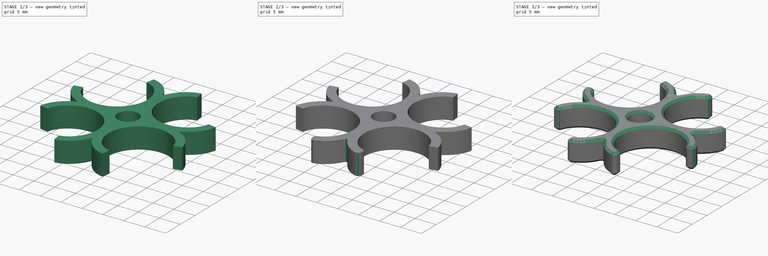
[diagram: build sequence overview — one tinted view per stage of 3, left to right]
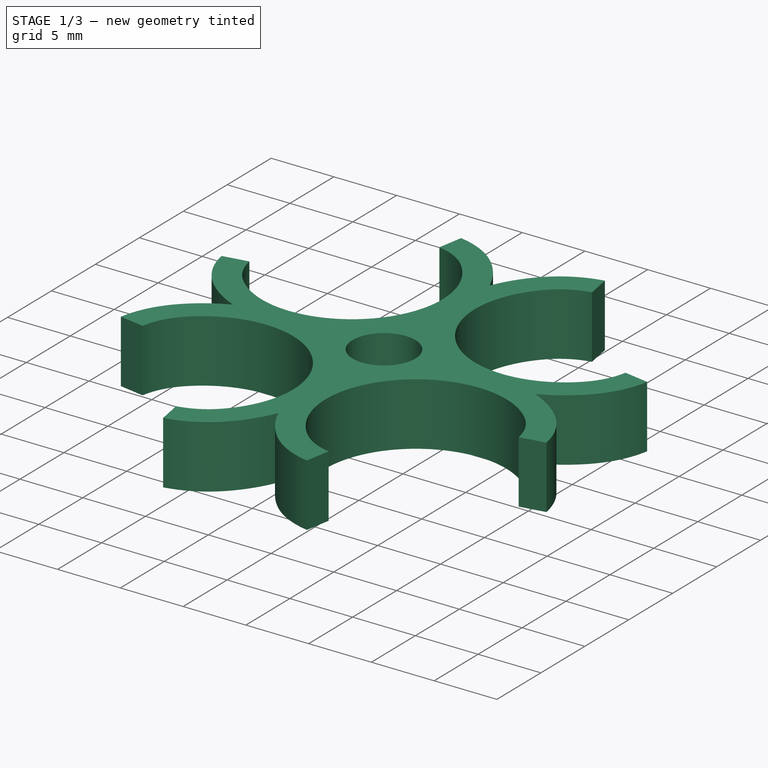
[diagram: stage 1 of 3 — iso view after this stage's code; geometry added in this stage tinted green]
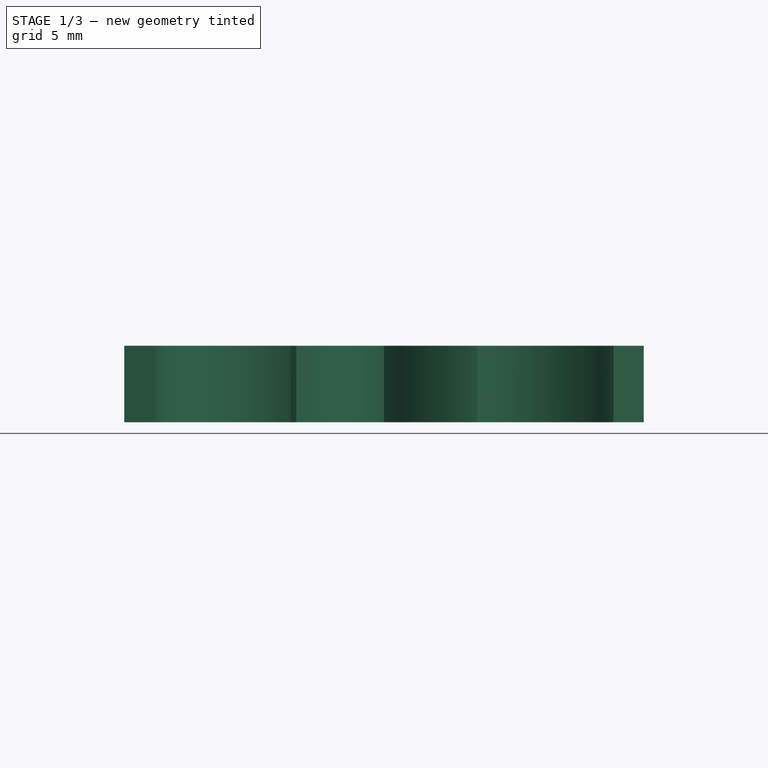
[diagram: stage 1 of 3 — front view after this stage's code; geometry added in this stage tinted green]
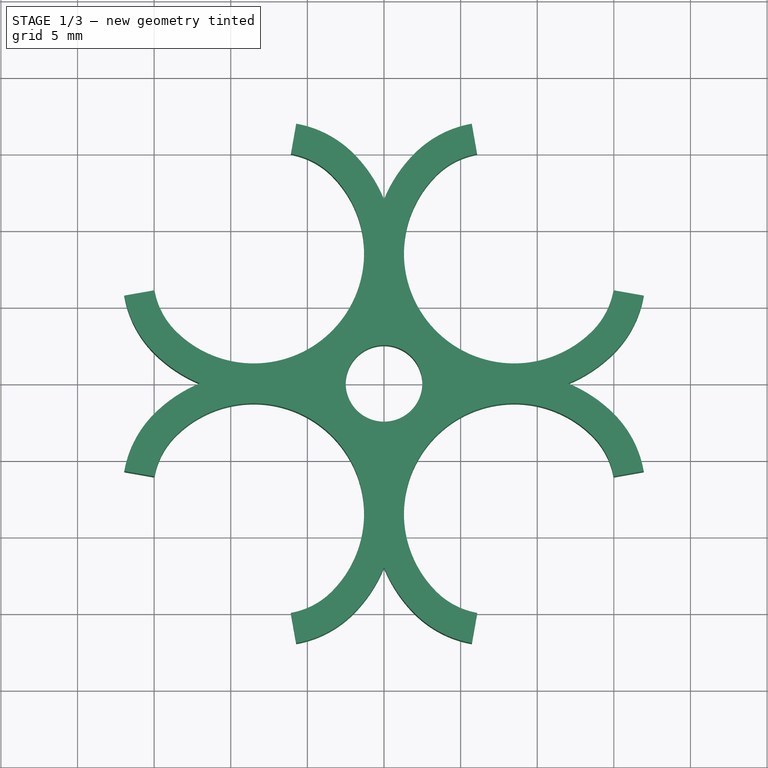
[diagram: stage 1 of 3 — top view after this stage's code; geometry added in this stage tinted green]
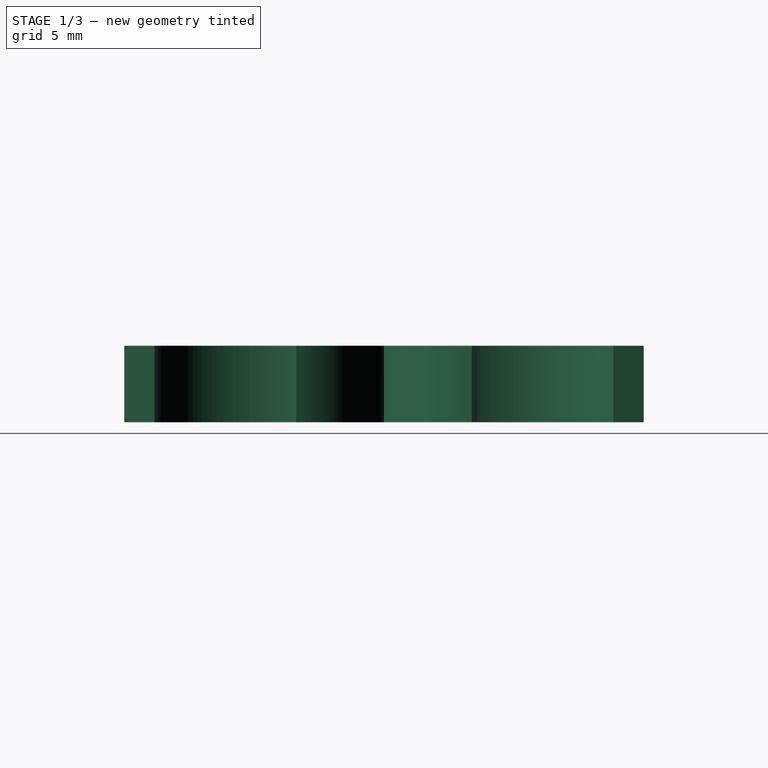
[diagram: stage 1 of 3 — right view after this stage's code; geometry added in this stage tinted green]
FCSTD DOCUMENT  (FreeCAD 0.19R23556 (Git))
Label: 4-AA-Halter
License: Creative Commons Attribution-NonCommercial-ShareAlike
LicenseURL: http://creativecommons.org/licenses/by-nc-sa/4.0/
objects: PartDesign::PolarPattern×2, PartDesign::Fillet×2, Sketcher::SketchObject×1, PartDesign::Pad×1, PartDesign::Chamfer×1, PartDesign::Body×1
note: 12 computed .brp shape members not serialized (recipe doc carries the construction recipe); baked Part::Feature solids carry a one-line shape summary decoded from their .brp

FEATURE [Sketcher::SketchObject] Sketch
  MapMode = 5
  Support = -> [XY_Plane]
  sketch-geometry (15):
    g0: LineSegment StartX=-2.5 StartY=3e-16 StartZ=0 EndX=-12.0199 EndY=0 EndZ=0
    g1: LineSegment StartX=-16.9493 StartY=5.72883 StartZ=0 EndX=-14.9797 EndY=6.07612 EndZ=0
    g2: LineSegment StartX=0 StartY=2.5 StartZ=0 EndX=0 EndY=12.0199 EndZ=0
    g3: LineSegment StartX=-5.72883 StartY=16.9493 StartZ=0 EndX=-6.07612 EndY=14.9797 EndZ=0
    g4: ArcOfCircle CenterX=0 CenterY=0 CenterZ=0 NormalX=0 NormalY=0 NormalZ=1 AngleXU=0 Radius=2.5 StartAngle=1.5708 EndAngle=3.14159
    g5: ArcOfCircle CenterX=-8.5 CenterY=8.5 CenterZ=0 NormalX=0 NormalY=0 NormalZ=1 AngleXU=0 Radius=7.2 StartAngle=3.92699 EndAngle=7.06858
    g6: LineSegment StartX=-8.5 StartY=8.5 StartZ=0 EndX=0 EndY=0 EndZ=0
    g7: ArcOfCircle CenterX=-8.5 CenterY=8.5 CenterZ=0 NormalX=0 NormalY=0 NormalZ=1 AngleXU=0 Radius=9.2 StartAngle=3.92699 EndAngle=4.31978
    g8: ArcOfCircle CenterX=-8.5 CenterY=8.5 CenterZ=0 NormalX=0 NormalY=0 NormalZ=1 AngleXU=0 Radius=9.2 StartAngle=0.392612 EndAngle=0.785398
    g9: LineSegment StartX=-13.5912 StartY=3.40883 StartZ=0 EndX=-3.40883 EndY=13.5912 EndZ=0
    g10: ArcOfCircle CenterX=-6.94437 CenterY=10.0556 CenterZ=0 NormalX=0 NormalY=0 NormalZ=1 AngleXU=0 Radius=5 StartAngle=0.785398 EndAngle=1.39626
    g11: ArcOfCircle CenterX=-10.0556 CenterY=6.94437 CenterZ=0 NormalX=0 NormalY=0 NormalZ=1 AngleXU=0 Radius=5 StartAngle=3.31613 EndAngle=3.92699
    g12: Circle CenterX=-8.5 CenterY=8.5 CenterZ=0 NormalX=0 NormalY=0 NormalZ=1 AngleXU=0 Radius=7
    g13: ArcOfCircle CenterX=-10.0556 CenterY=6.94437 CenterZ=0 NormalX=0 NormalY=0 NormalZ=1 AngleXU=0 Radius=7 StartAngle=3.31613 EndAngle=3.92699
    g14: ArcOfCircle CenterX=-6.94437 CenterY=10.0556 CenterZ=0 NormalX=0 NormalY=0 NormalZ=1 AngleXU=0 Radius=7 StartAngle=0.785398 EndAngle=1.39626
  constraints (45):
    c: PointOnObject(g0,g-1)
    c: PointOnObject(g0,g-1)
    c: PointOnObject(g2,g-2)
    c: PointOnObject(g2,g-2)
    c: Coincident(g4,g-1)
    c: Coincident(g4,g0)
    c: Coincident(g4,g2)
    c: Radius(g4) = 2.5
    c: Coincident(g6,g5)
    c: Coincident(g6,g4)
    c: DistanceY(g4,g5) = 8.5
    c: DistanceX(g5,g4) = 8.5
    c: Radius(g5) = 7.2
    c: Equal(g1,g3)
    c: Distance(g1) = 2
    c: Angle(g5) = 3.14159
    c: Coincident(g7,g5)
    c: Coincident(g7,g0)
    c: Coincident(g8,g5)
    c: Coincident(g8,g2)
    c: Perpendicular(g6,g9)
    c: Coincident(g9,g5)
    c: Coincident(g5,g9)
    c: PointOnObject(g10,g9)
    c: Coincident(g10,g5)
    c: Coincident(g10,g3)
    c: Radius(g10) = 5
    c: PointOnObject(g11,g9)
    c: Coincident(g11,g5)
    c: Coincident(g11,g1)
    c: Equal(g11,g10)
    c: Angle(g11) = 0.610865
    c: Angle(g10) = 0.610865
    c: Coincident(g12,g5)
    c: Radius(g12) = 7
    c: PointOnObject(g7,g9)
    c: Perpendicular(g11,g1)
    c: Coincident(g13,g11)
    c: Coincident(g13,g7)
    c: Coincident(g13,g1)
    c: PointOnObject(g8,g9)
    c: Coincident(g14,g10)
    c: Coincident(g14,g8)
    c: Coincident(g14,g3)
    c: Perpendicular(g10,g3)
FEATURE [PartDesign::Pad] Pad
  Direction = (1,1,1)
  Length = 5
  Length2 = 100
  Profile = -> Sketch
  Refine = true
  Type = 0
FEATURE [PartDesign::PolarPattern] PolarPattern
  Angle = 360
  Axis = -> Sketch [N_Axis]
  BaseFeature = -> Pad
  Occurrences = 4
  Originals = -> [Pad]
  Refine = true
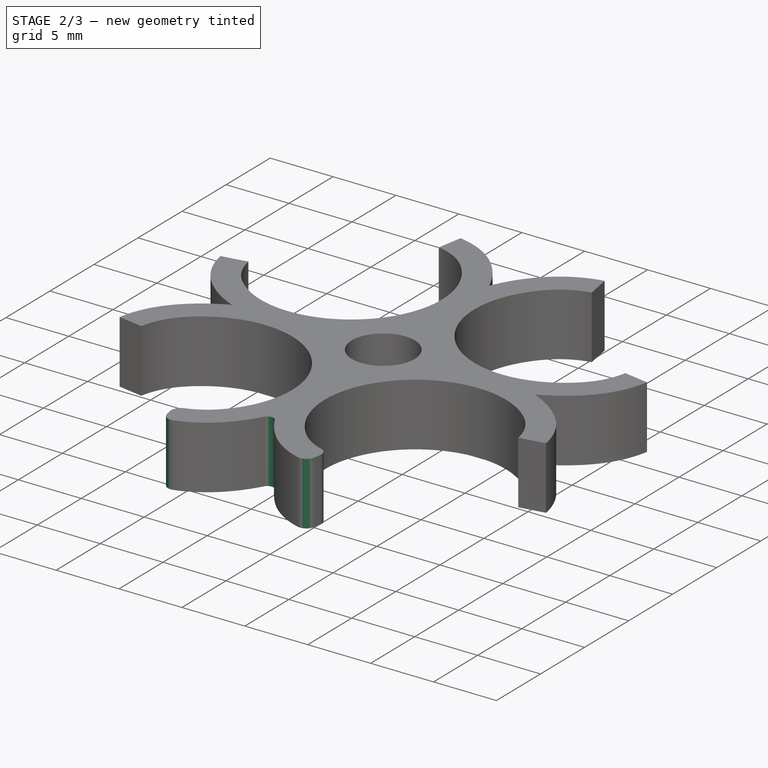
[diagram: stage 2 of 3 — iso view after this stage's code; geometry added in this stage tinted green]
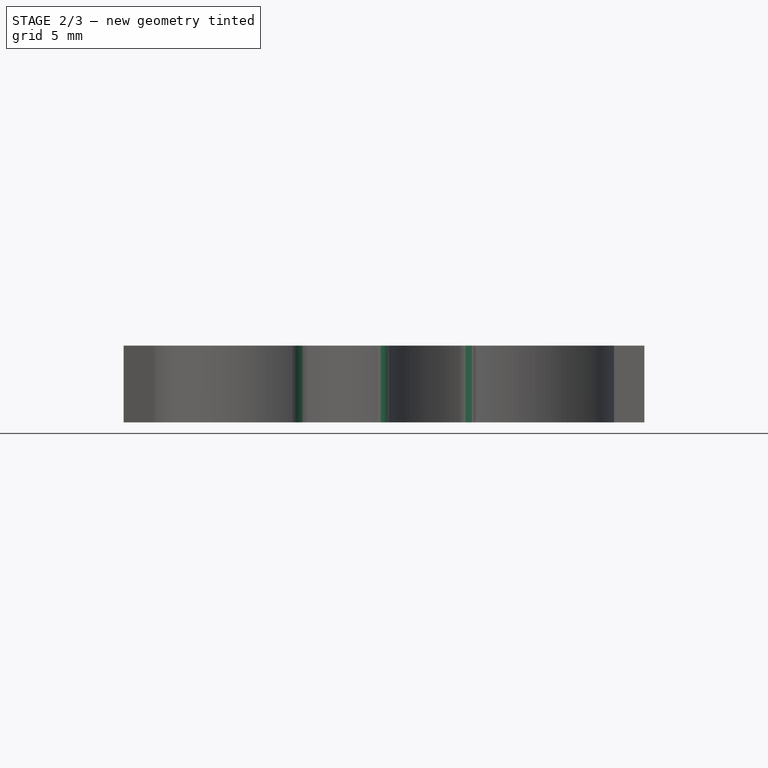
[diagram: stage 2 of 3 — front view after this stage's code; geometry added in this stage tinted green]
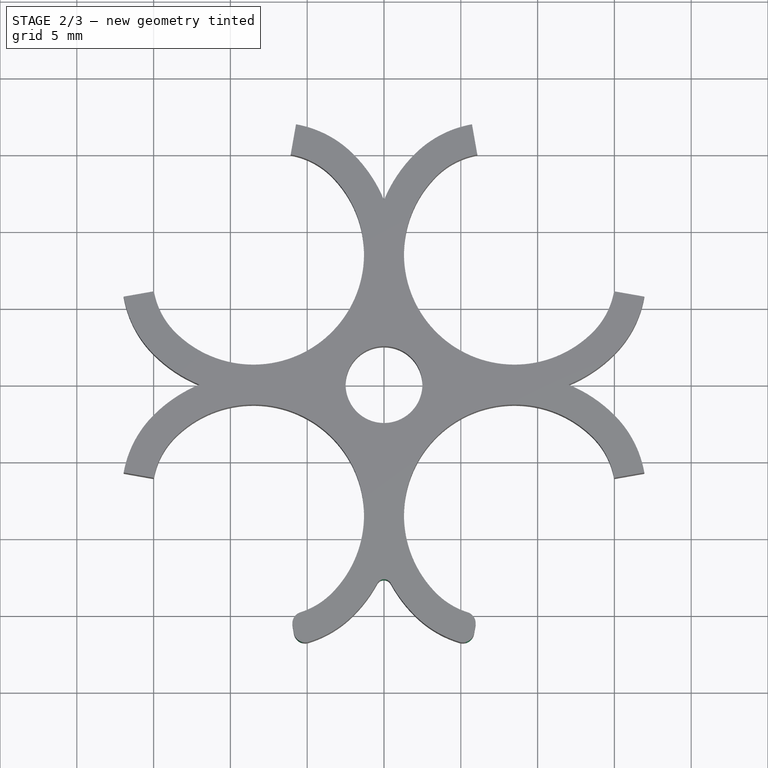
[diagram: stage 2 of 3 — top view after this stage's code; geometry added in this stage tinted green]
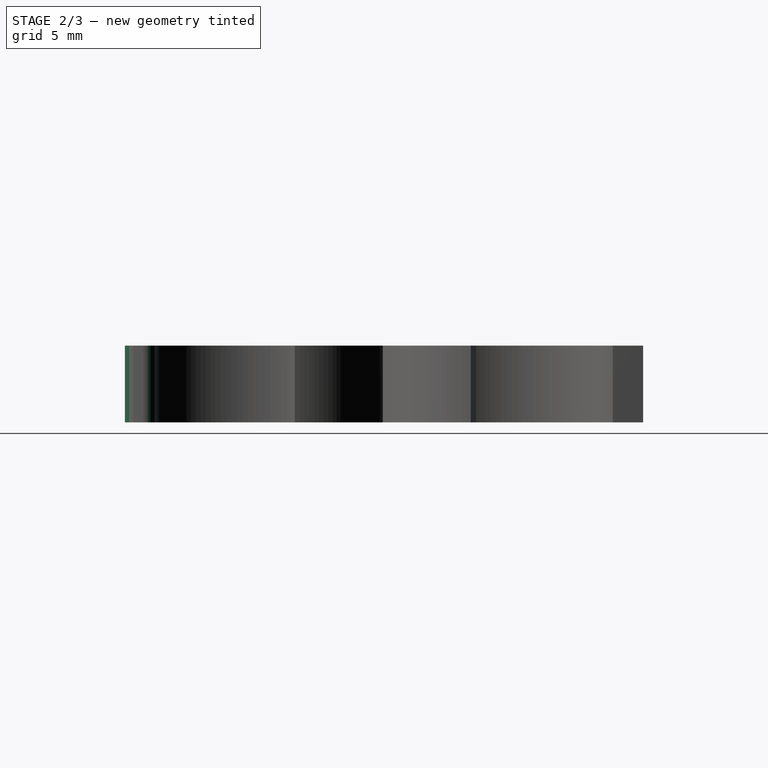
[diagram: stage 2 of 3 — right view after this stage's code; geometry added in this stage tinted green]
FEATURE [PartDesign::Fillet] Fillet
  Base = -> PolarPattern [Edge60]
  BaseFeature = -> PolarPattern
  Radius = 0.5
  Refine = true
  SupportTransform = false
FEATURE [PartDesign::Fillet] Fillet001
  Base = -> Fillet [Edge47,Edge91,Edge88,Edge89]
  BaseFeature = -> Fillet
  Radius = 0.75
  Refine = true
  SupportTransform = false
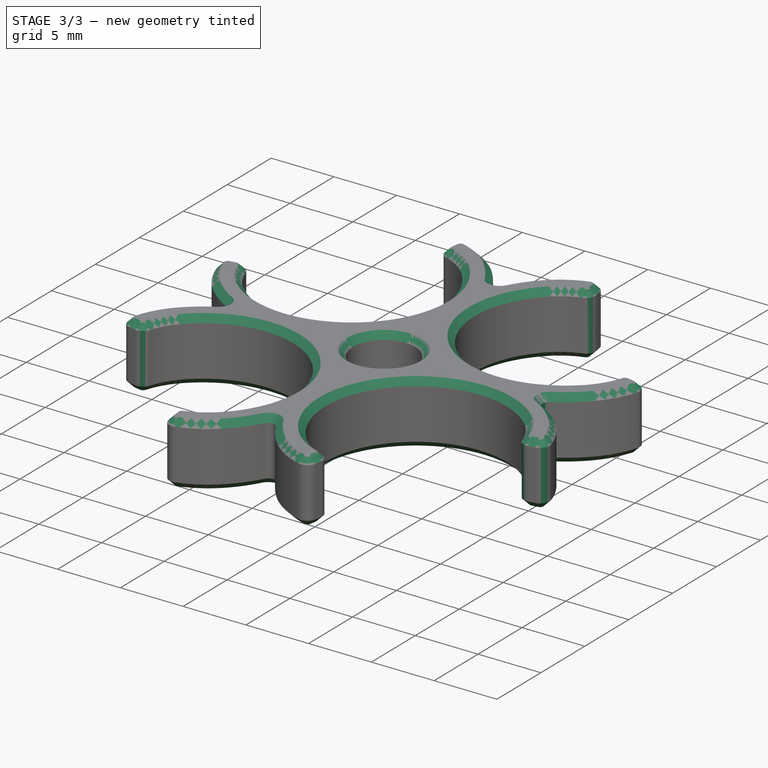
[diagram: stage 3 of 3 — iso view after this stage's code; geometry added in this stage tinted green]
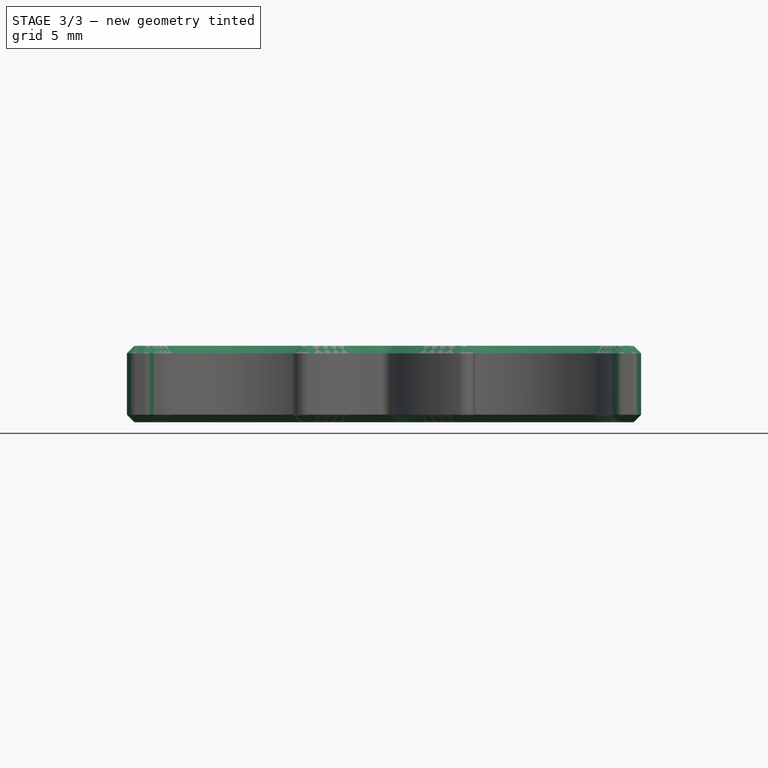
[diagram: stage 3 of 3 — front view after this stage's code; geometry added in this stage tinted green]
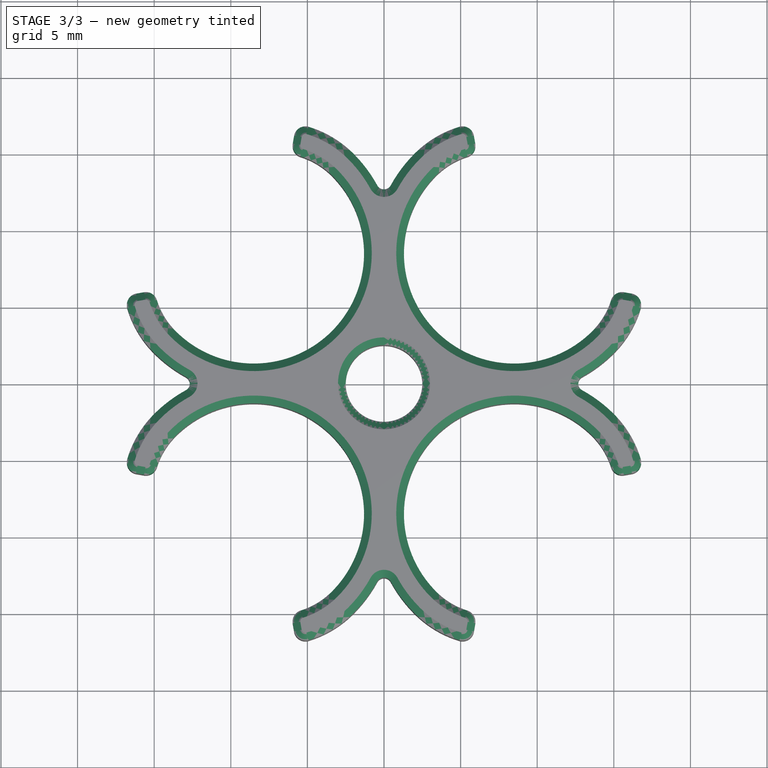
[diagram: stage 3 of 3 — top view after this stage's code; geometry added in this stage tinted green]
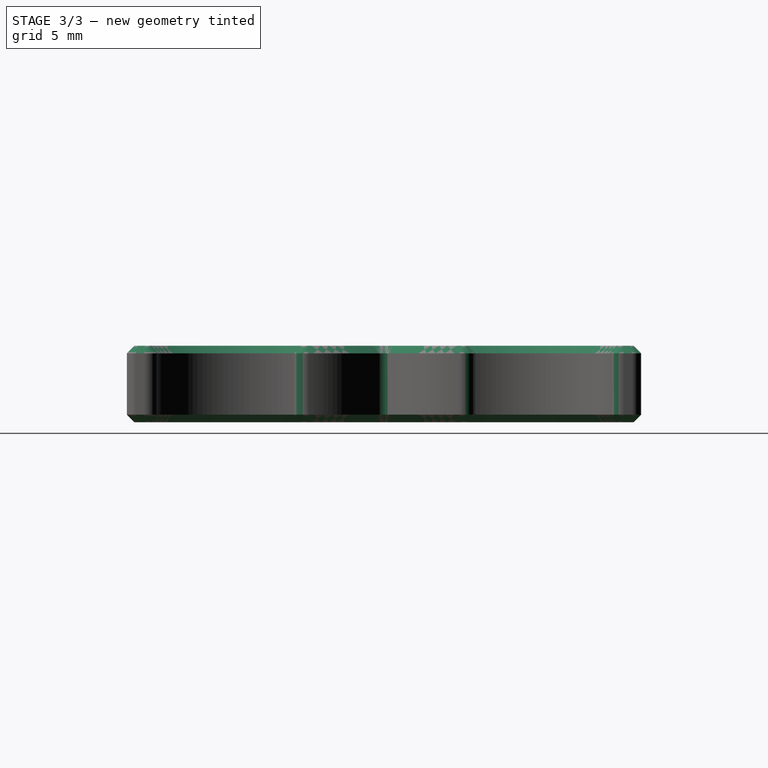
[diagram: stage 3 of 3 — right view after this stage's code; geometry added in this stage tinted green]
FEATURE [PartDesign::PolarPattern] PolarPattern001
  Angle = 360
  Axis = -> Z_Axis
  BaseFeature = -> Fillet001
  Occurrences = 4
  Originals = -> [Fillet,Fillet001]
  Refine = true
FEATURE [PartDesign::Chamfer] Chamfer
  Angle = 45
  Base = -> PolarPattern001 [Face59,Face57]
  BaseFeature = -> PolarPattern001
  ChamferType = 0
  FlipDirection = false
  Refine = true
  Size = 0.5
  Size2 = 1
  SupportTransform = false
FEATURE [PartDesign::Body] Body
  Group = -> [Sketch,Pad,PolarPattern,Fillet,Fillet001,PolarPattern001,Chamfer]
  Origin = -> Origin
  Tip = -> Chamfer
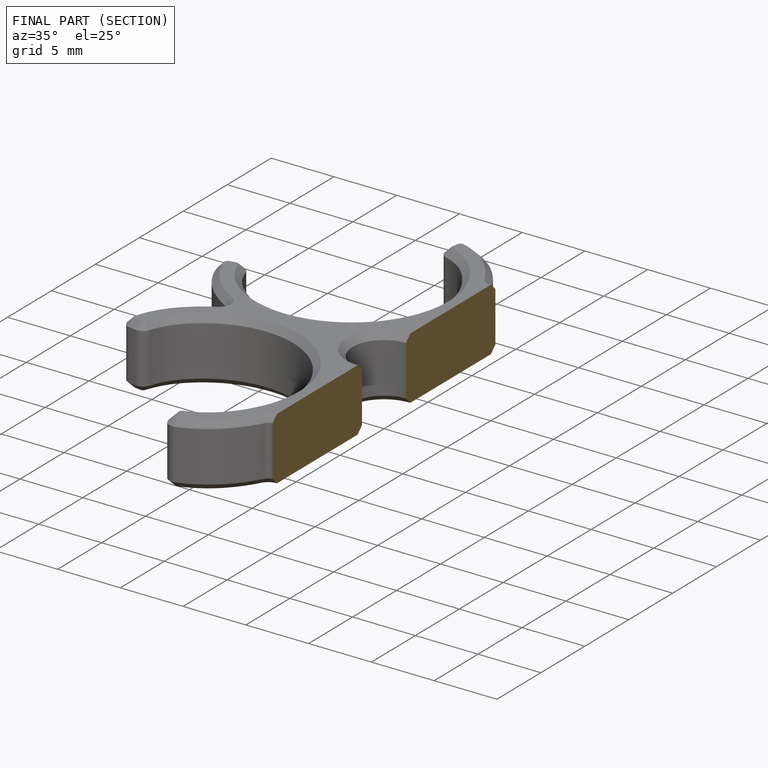
[diagram: finished part — half-section view (interior)]
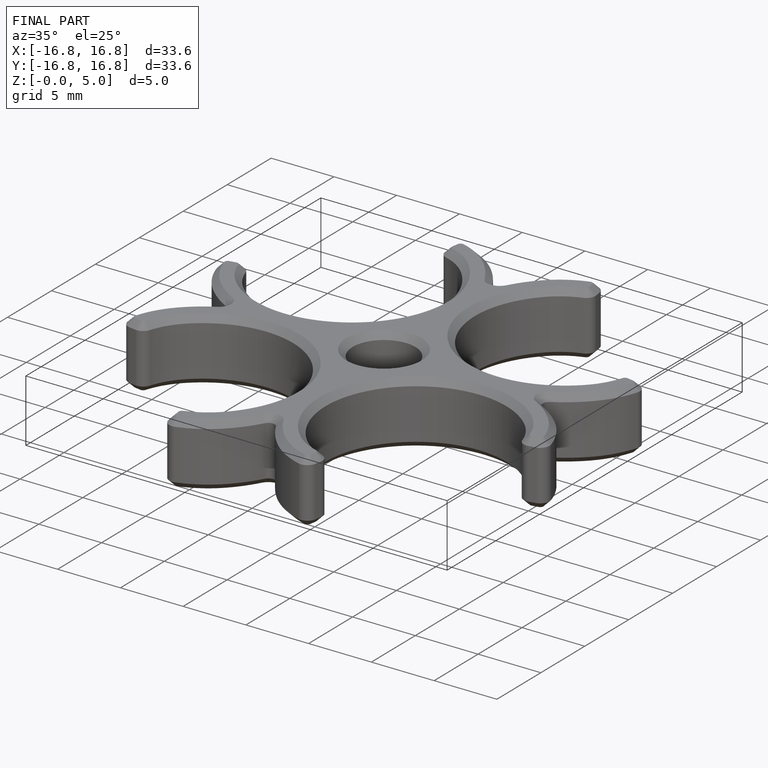
[diagram: finished part — iso view with bounding-box wireframe]
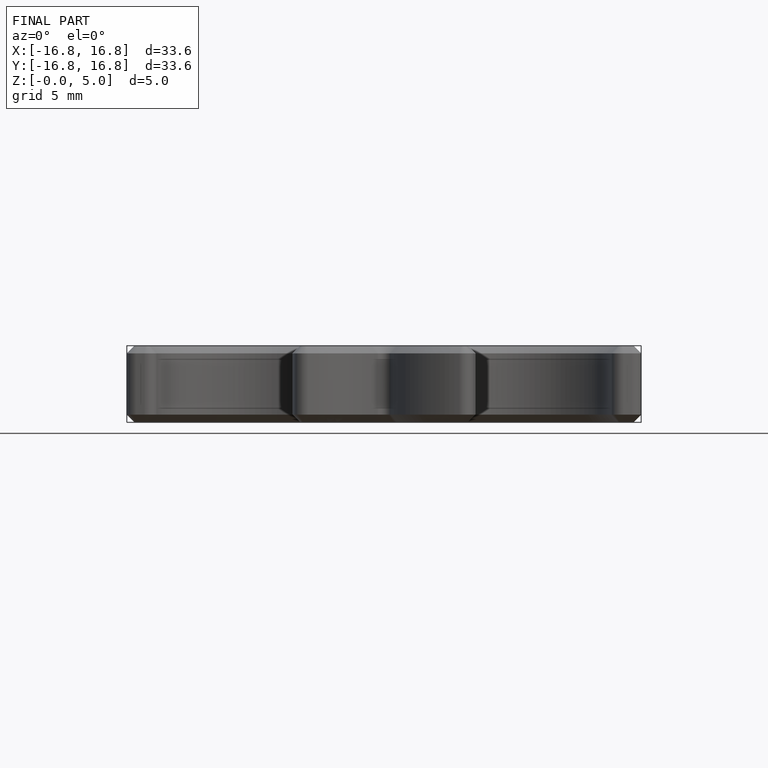
[diagram: finished part — front view with bounding-box wireframe]
